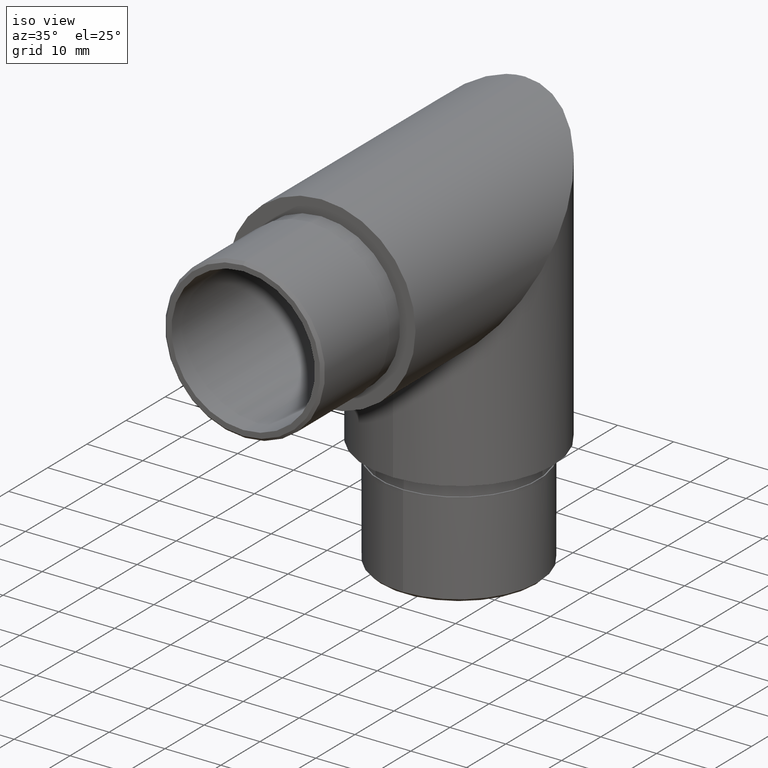
[diagram: clean part render]
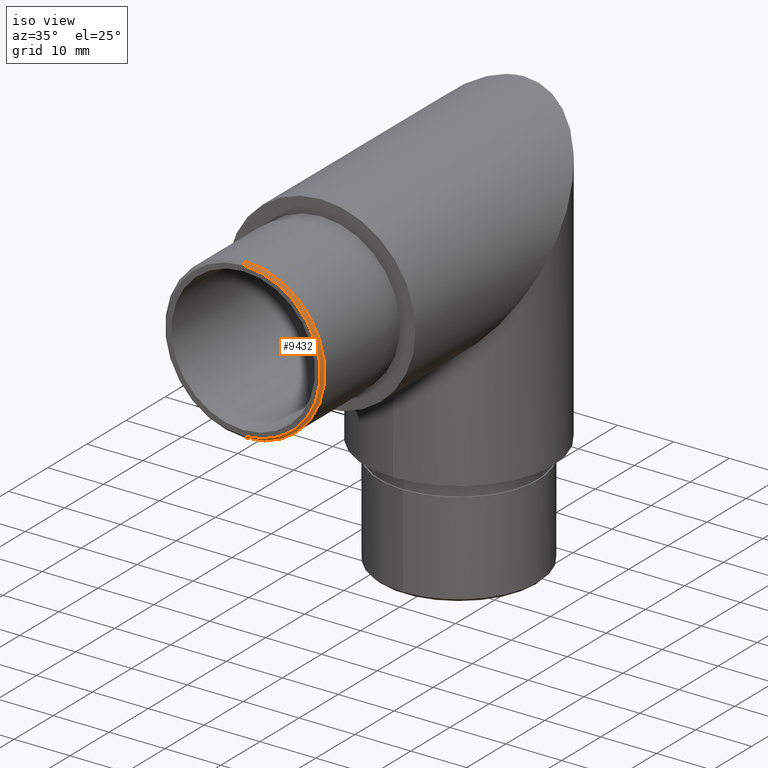
[diagram: same view with one face highlighted and labeled with its STEP entity id]
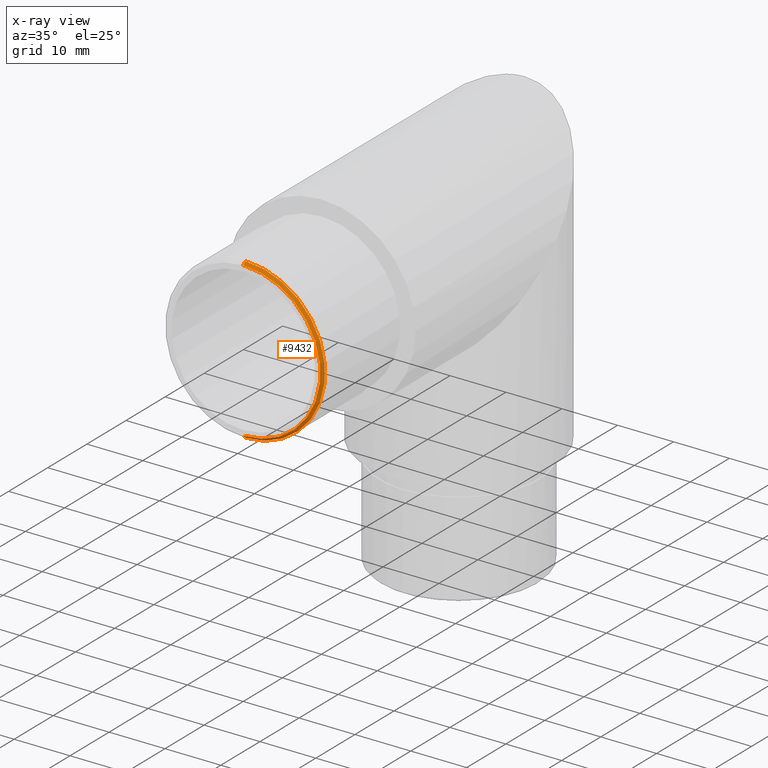
[diagram: x-ray of the same camera — body ghosted, the highlighted face saturated]
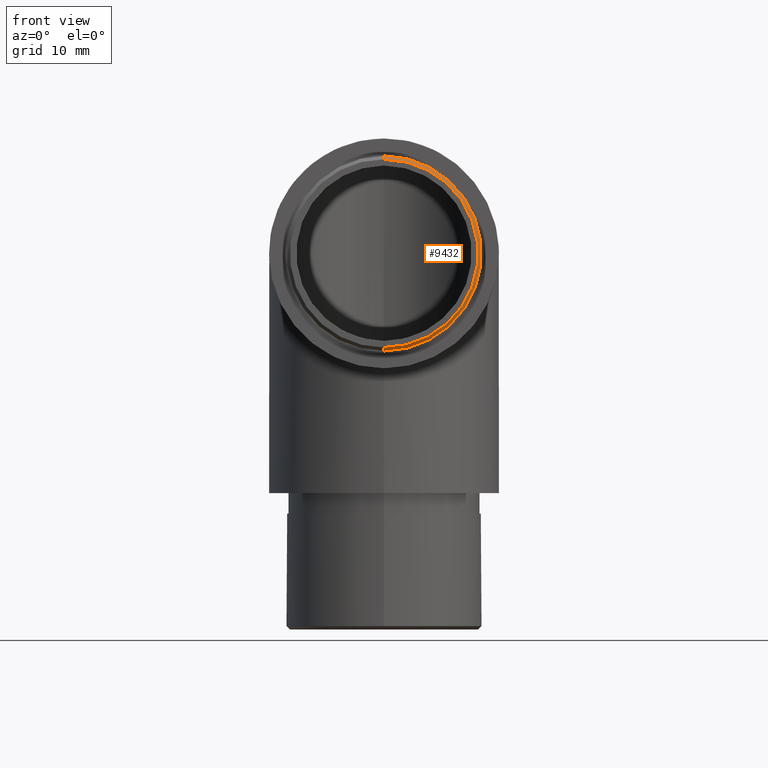
[diagram: same view with one face highlighted and labeled with its STEP entity id]
A machine part, iso view. The second image highlights one B-rep face of the part: STEP entity #9432.
The next image is the same camera in x-ray: the body ghosted, the highlighted face saturated — about 0% of this face is hidden behind the body in this view.
A second angle (front view) of the same face is appended — the face is thin or edge-on in the first view.
In plain terms, the highlighted conical surface has half-angle 45 deg.
Its self-contained STEP definition (entity closure, byte-faithful):
#1184 = CONICAL_SURFACE ( 'NONE', #5699, 13.79999999999999361, 0.7853981633974552734 ) ;
#1357 = EDGE_CURVE ( 'NONE', #4787, #11653, #10066, .T. ) ;
#1754 = DIRECTION ( 'NONE',  ( 0.000000000000000000, 0.000000000000000000, -1.000000000000000000 ) ) ;
#1849 = CARTESIAN_POINT ( 'NONE',  ( 1.690012582823346543E-15, -20.00000000000000000, -13.79999999999999361 ) ) ;
#2445 = EDGE_CURVE ( 'NONE', #4787, #9069, #10838, .T. ) ;
#2732 = DIRECTION ( 'NONE',  ( 0.000000000000000000, 0.7071067811865426878, 0.7071067811865524577 ) ) ;
#3234 = LINE ( 'NONE', #6580, #10103 ) ;
#3492 = FACE_OUTER_BOUND ( 'NONE', #5025, .T. ) ;
#3703 = ORIENTED_EDGE ( 'NONE', *, *, #2445, .T. ) ;
#3809 = DIRECTION ( 'NONE',  ( 0.000000000000000000, 0.000000000000000000, -1.000000000000000000 ) ) ;
#3971 = AXIS2_PLACEMENT_3D ( 'NONE', #9697, #9773, #3809 ) ;
#4229 = DIRECTION ( 'NONE',  ( 0.000000000000000000, 0.000000000000000000, 1.000000000000000000 ) ) ;
#4397 = CARTESIAN_POINT ( 'NONE',  ( 0.000000000000000000, -19.50000000000000000, 14.30000000000000071 ) ) ;
#4406 = VECTOR ( 'NONE', #8599, 1000.000000000000000 ) ;
#4787 = VERTEX_POINT ( 'NONE', #11420 ) ;
#5025 = EDGE_LOOP ( 'NONE', ( #7692, #3703, #7949, #10289 ) ) ;
#5213 = EDGE_CURVE ( 'NONE', #11653, #7203, #3234, .T. ) ;
#5545 = DIRECTION ( 'NONE',  ( 0.000000000000000000, 1.000000000000000000, 0.000000000000000000 ) ) ;
#5699 = AXIS2_PLACEMENT_3D ( 'NONE', #8131, #7991, #4229 ) ;
#6177 = CARTESIAN_POINT ( 'NONE',  ( 1.751244922780715104E-15, -19.50000000000000000, -14.30000000000000071 ) ) ;
#6356 = CIRCLE ( 'NONE', #6801, 14.30000000000000071 ) ;
#6580 = CARTESIAN_POINT ( 'NONE',  ( 0.000000000000000000, -20.00000000000000000, 13.79999999999999361 ) ) ;
#6801 = AXIS2_PLACEMENT_3D ( 'NONE', #12559, #5545, #1754 ) ;
#7203 = VERTEX_POINT ( 'NONE', #4397 ) ;
#7692 = ORIENTED_EDGE ( 'NONE', *, *, #1357, .F. ) ;
#7872 = CARTESIAN_POINT ( 'NONE',  ( 0.000000000000000000, -20.00000000000000000, 13.79999999999999361 ) ) ;
#7949 = ORIENTED_EDGE ( 'NONE', *, *, #12228, .F. ) ;
#7991 = DIRECTION ( 'NONE',  ( 0.000000000000000000, 1.000000000000000000, 0.000000000000000000 ) ) ;
#8131 = CARTESIAN_POINT ( 'NONE',  ( 0.000000000000000000, -20.00000000000000000, 0.000000000000000000 ) ) ;
#8599 = DIRECTION ( 'NONE',  ( 8.659560562354994488E-17, 0.7071067811865426878, -0.7071067811865524577 ) ) ;
#9069 = VERTEX_POINT ( 'NONE', #6177 ) ;
#9432 = ADVANCED_FACE ( 'NONE', ( #3492 ), #1184, .T. ) ;
#9697 = CARTESIAN_POINT ( 'NONE',  ( 0.000000000000000000, -20.00000000000000000, 0.000000000000000000 ) ) ;
#9773 = DIRECTION ( 'NONE',  ( 0.000000000000000000, -1.000000000000000000, 0.000000000000000000 ) ) ;
#10066 = CIRCLE ( 'NONE', #3971, 13.79999999999999361 ) ;
#10103 = VECTOR ( 'NONE', #2732, 1000.000000000000000 ) ;
#10289 = ORIENTED_EDGE ( 'NONE', *, *, #5213, .F. ) ;
#10838 = LINE ( 'NONE', #1849, #4406 ) ;
#11420 = CARTESIAN_POINT ( 'NONE',  ( 1.720628752802030725E-15, -20.00000000000000000, -13.79999999999999361 ) ) ;
#11653 = VERTEX_POINT ( 'NONE', #7872 ) ;
#12228 = EDGE_CURVE ( 'NONE', #7203, #9069, #6356, .T. ) ;
#12559 = CARTESIAN_POINT ( 'NONE',  ( 0.000000000000000000, -19.50000000000000000, 0.000000000000000000 ) ) ;